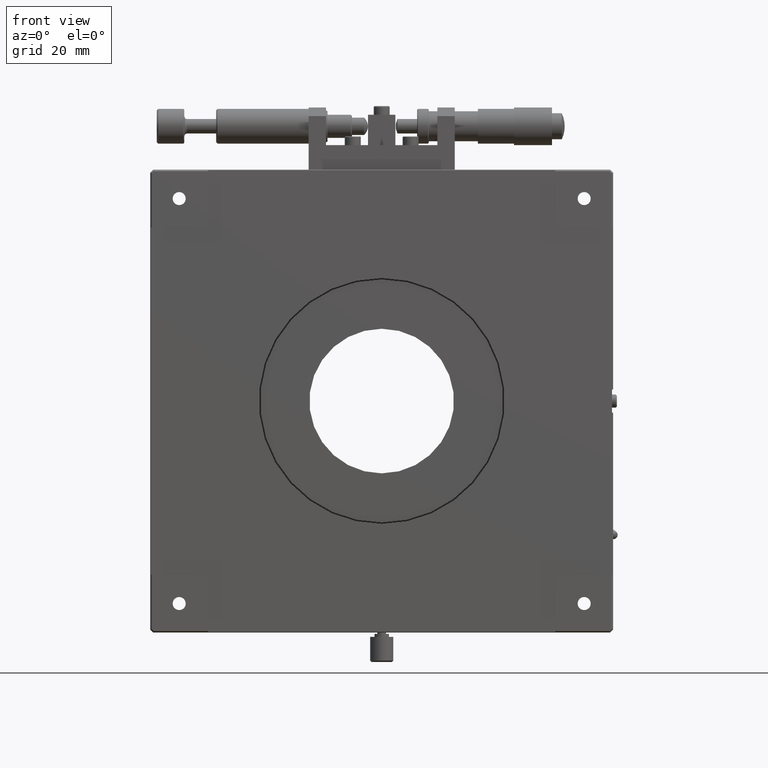
[diagram: clean part render]
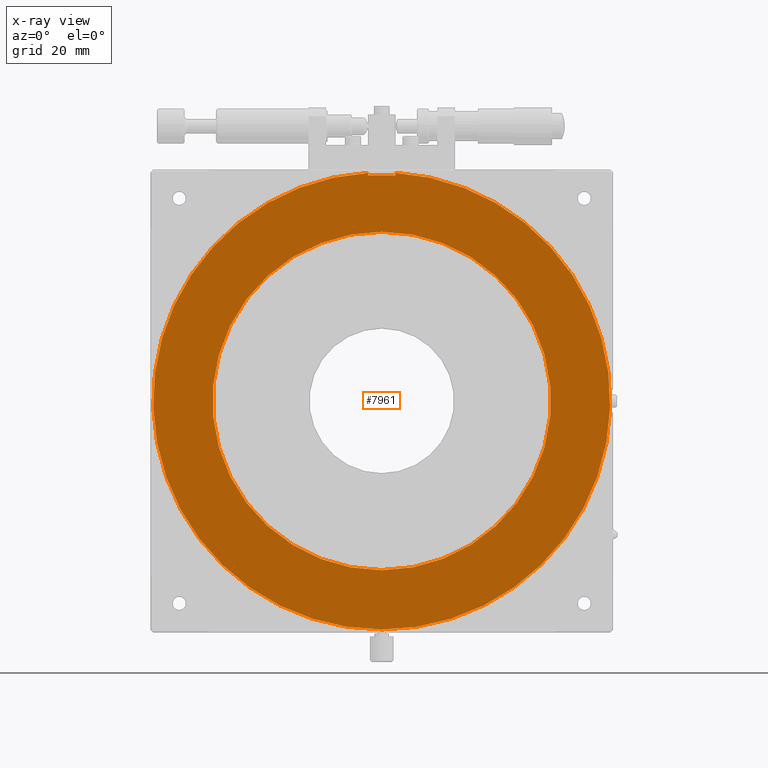
[diagram: x-ray — body ghosted, one internal face saturated and labeled with its STEP entity id]
A machine part, front view, then the same camera in x-ray: the body is ghosted and one INTERNAL B-rep face — a face not visible from any outside direction — is saturated and labeled: STEP entity #7961.
In plain terms, the highlighted planar face has unit normal (0, -1, 0).
Its self-contained STEP definition (entity closure, byte-faithful):
#223 = VERTEX_POINT ( 'NONE', #6425 ) ;
#235 = VERTEX_POINT ( 'NONE', #6395 ) ;
#238 = VERTEX_POINT ( 'NONE', #6409 ) ;
#712 = CARTESIAN_POINT ( 'NONE',  ( 75.25000000000000000, 11.70000000000000100, 158.0000000000000000 ) ) ;
#736 = DIRECTION ( 'NONE',  ( 0.0000000000000000000, 0.0000000000000000000, 1.000000000000000000 ) ) ;
#748 = DIRECTION ( 'NONE',  ( -1.000000000000000000, -0.0000000000000000000, -0.0000000000000000000 ) ) ;
#750 = CARTESIAN_POINT ( 'NONE',  ( 84.75000000000000000, 11.70000000000000100, 80.00000000000000000 ) ) ;
#774 = DIRECTION ( 'NONE',  ( 0.0000000000000000000, -0.0000000000000000000, -1.000000000000000000 ) ) ;
#778 = CARTESIAN_POINT ( 'NONE',  ( 1.000000000000000900, 11.70000000000000100, 158.0000000000000000 ) ) ;
#1154 = CARTESIAN_POINT ( 'NONE',  ( 80.00000000000000000, 11.69999999999999900, 80.00000000000000000 ) ) ;
#1163 = DIRECTION ( 'NONE',  ( 0.0000000000000000000, 1.000000000000000000, 0.0000000000000000000 ) ) ;
#1171 = DIRECTION ( 'NONE',  ( 0.0000000000000000000, 0.0000000000000000000, 1.000000000000000000 ) ) ;
#1714 = CARTESIAN_POINT ( 'NONE',  ( 75.24999999999998600, 11.69999999999999900, 158.8570700698421700 ) ) ;
#1748 = CARTESIAN_POINT ( 'NONE',  ( 75.25000000000000000, 11.70000000000000100, 158.0000000000000000 ) ) ;
#2086 = DIRECTION ( 'NONE',  ( 0.0000000000000000000, 1.000000000000000000, 0.0000000000000000000 ) ) ;
#2092 = DIRECTION ( 'NONE',  ( 0.0000000000000000000, 0.0000000000000000000, 1.000000000000000000 ) ) ;
#2102 = CARTESIAN_POINT ( 'NONE',  ( 80.00000000000000000, 11.69999999999999900, 80.00000000000000000 ) ) ;
#2126 = DIRECTION ( 'NONE',  ( 0.0000000000000000000, 1.000000000000000000, 0.0000000000000000000 ) ) ;
#2130 = DIRECTION ( 'NONE',  ( 0.0000000000000000000, 0.0000000000000000000, 1.000000000000000000 ) ) ;
#2133 = CARTESIAN_POINT ( 'NONE',  ( 80.00000000000000000, 11.69999999999999900, 80.00000000000000000 ) ) ;
#2465 = DIRECTION ( 'NONE',  ( 0.0000000000000000000, -1.000000000000000000, 0.0000000000000000000 ) ) ;
#2467 = DIRECTION ( 'NONE',  ( 0.0000000000000000000, -0.0000000000000000000, -1.000000000000000000 ) ) ;
#2475 = PLANE ( 'NONE',  #8863 ) ;
#2494 = CARTESIAN_POINT ( 'NONE',  ( 1.000000000000000900, 11.70000000000000100, 80.00000000000000000 ) ) ;
#2712 = CARTESIAN_POINT ( 'NONE',  ( 80.00000000000000000, 11.69999999999999900, 80.00000000000000000 ) ) ;
#2725 = DIRECTION ( 'NONE',  ( 0.0000000000000000000, 1.000000000000000000, 0.0000000000000000000 ) ) ;
#2739 = DIRECTION ( 'NONE',  ( 0.0000000000000000000, 0.0000000000000000000, 1.000000000000000000 ) ) ;
#3036 = ORIENTED_EDGE ( 'NONE', *, *, #7069, .T. ) ;
#3037 = ORIENTED_EDGE ( 'NONE', *, *, #7216, .F. ) ;
#3041 = ORIENTED_EDGE ( 'NONE', *, *, #7250, .T. ) ;
#3056 = ORIENTED_EDGE ( 'NONE', *, *, #7080, .T. ) ;
#3059 = ORIENTED_EDGE ( 'NONE', *, *, #7237, .T. ) ;
#3060 = ORIENTED_EDGE ( 'NONE', *, *, #7078, .T. ) ;
#3066 = ORIENTED_EDGE ( 'NONE', *, *, #8030, .F. ) ;
#3984 = VERTEX_POINT ( 'NONE', #6566 ) ;
#4156 = VERTEX_POINT ( 'NONE', #6816 ) ;
#4216 = AXIS2_PLACEMENT_3D ( 'NONE', #2712, #2725, #2739 ) ;
#5110 = CIRCLE ( 'NONE', #8932, 58.50000000000000700 ) ;
#5129 = CIRCLE ( 'NONE', #8904, 58.50000000000000700 ) ;
#5165 = CIRCLE ( 'NONE', #8905, 79.00000000000000000 ) ;
#5890 = VECTOR ( 'NONE', #736, 1000.000000000000000 ) ;
#5908 = VECTOR ( 'NONE', #748, 1000.000000000000000 ) ;
#5920 = LINE ( 'NONE', #712, #5890 ) ;
#5940 = LINE ( 'NONE', #778, #5908 ) ;
#5941 = VECTOR ( 'NONE', #774, 1000.000000000000000 ) ;
#5946 = LINE ( 'NONE', #750, #5941 ) ;
#6395 = CARTESIAN_POINT ( 'NONE',  ( 80.00000000000001400, 11.69999999999999900, 21.50000000000000000 ) ) ;
#6409 = CARTESIAN_POINT ( 'NONE',  ( 84.75000000000000000, 11.70000000000000100, 158.0000000000000000 ) ) ;
#6425 = CARTESIAN_POINT ( 'NONE',  ( 80.00000000000000000, 11.69999999999999900, 138.5000000000000000 ) ) ;
#6566 = CARTESIAN_POINT ( 'NONE',  ( 80.00000000000001400, 11.69999999999999900, 1.000000000000000900 ) ) ;
#6816 = CARTESIAN_POINT ( 'NONE',  ( 84.75000000000000000, 11.69999999999999900, 158.8570700698421700 ) ) ;
#7069 = EDGE_CURVE ( 'NONE', #7412, #7394, #5920, .T. ) ;
#7078 = EDGE_CURVE ( 'NONE', #4156, #238, #5946, .T. ) ;
#7080 = EDGE_CURVE ( 'NONE', #238, #7412, #5940, .T. ) ;
#7216 = EDGE_CURVE ( 'NONE', #3984, #7394, #5165, .T. ) ;
#7237 = EDGE_CURVE ( 'NONE', #235, #223, #5129, .T. ) ;
#7250 = EDGE_CURVE ( 'NONE', #223, #235, #5110, .T. ) ;
#7315 = EDGE_LOOP ( 'NONE', ( #3060, #3056, #3036, #3037, #3066 ) ) ;
#7356 = EDGE_LOOP ( 'NONE', ( #3041, #3059 ) ) ;
#7394 = VERTEX_POINT ( 'NONE', #1714 ) ;
#7412 = VERTEX_POINT ( 'NONE', #1748 ) ;
#7961 = ADVANCED_FACE ( 'NONE', ( #8473, #8490 ), #2475, .T. ) ;
#8030 = EDGE_CURVE ( 'NONE', #4156, #3984, #8645, .T. ) ;
#8473 = FACE_OUTER_BOUND ( 'NONE', #7315, .T. ) ;
#8490 = FACE_BOUND ( 'NONE', #7356, .T. ) ;
#8645 = CIRCLE ( 'NONE', #4216, 79.00000000000000000 ) ;
#8863 = AXIS2_PLACEMENT_3D ( 'NONE', #2494, #2465, #2467 ) ;
#8904 = AXIS2_PLACEMENT_3D ( 'NONE', #2102, #2086, #2092 ) ;
#8905 = AXIS2_PLACEMENT_3D ( 'NONE', #1154, #1163, #1171 ) ;
#8932 = AXIS2_PLACEMENT_3D ( 'NONE', #2133, #2126, #2130 ) ;